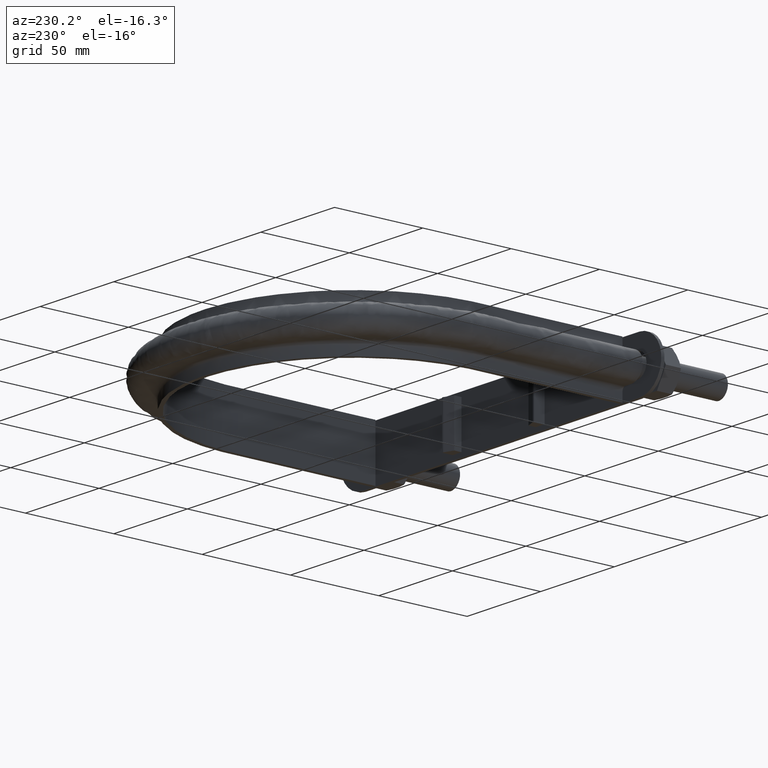
[diagram: clean part render]
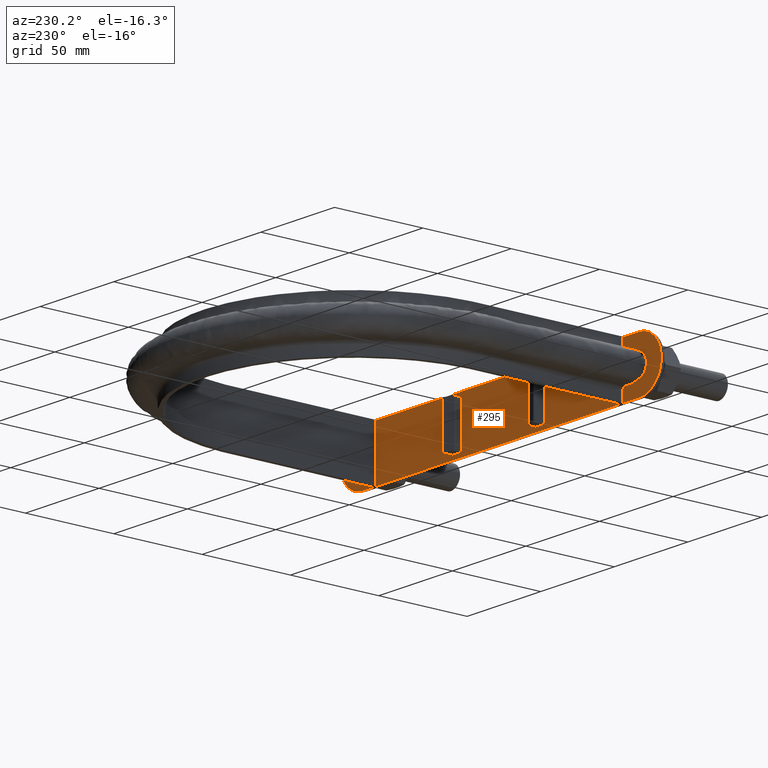
[diagram: same view with one face highlighted and labeled with its STEP entity id]
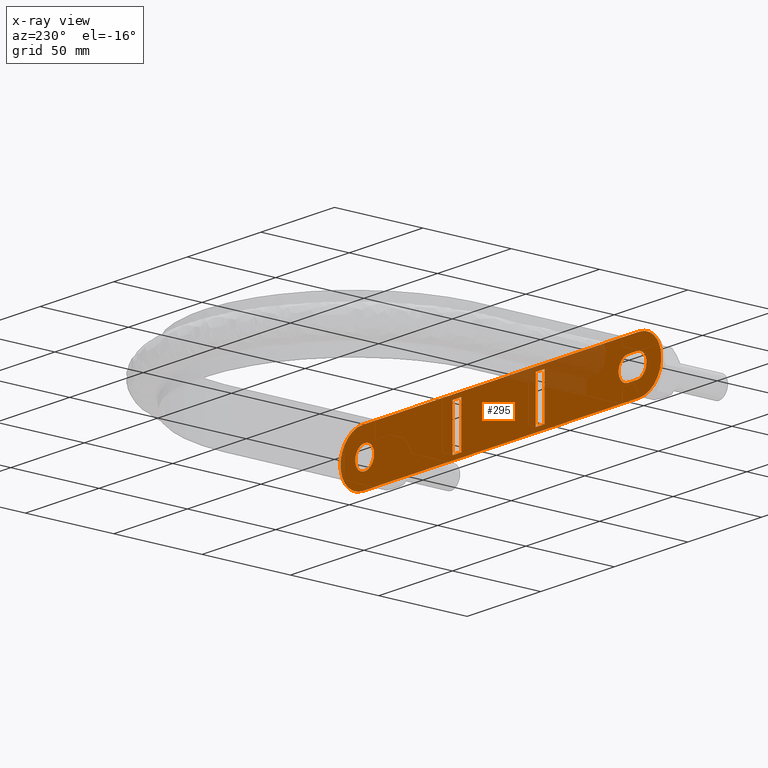
[diagram: x-ray of the same camera — body ghosted, the highlighted face saturated]
A machine part, auxiliary view. The second image highlights one B-rep face of the part: STEP entity #295.
The next image is the same camera in x-ray: the body ghosted, the highlighted face saturated — about 13% of this face is hidden behind the body in this view.
In plain terms, the highlighted planar face has unit normal (0, 1, 0).
Its self-contained STEP definition (entity closure, byte-faithful):
#295 = ADVANCED_FACE( '', ( #413, #414, #415, #416, #417 ), #418, .T. );
#413 = FACE_OUTER_BOUND( '', #1495, .T. );
#414 = FACE_BOUND( '', #1496, .T. );
#415 = FACE_BOUND( '', #1497, .T. );
#416 = FACE_BOUND( '', #1498, .T. );
#417 = FACE_BOUND( '', #1499, .T. );
#418 = PLANE( '', #1500 );
#1495 = EDGE_LOOP( '', ( #1831, #1832, #1833, #1834 ) );
#1496 = EDGE_LOOP( '', ( #1835, #1836, #1837, #1838 ) );
#1497 = EDGE_LOOP( '', ( #1839 ) );
#1498 = EDGE_LOOP( '', ( #1840, #1841, #1842, #1843 ) );
#1499 = EDGE_LOOP( '', ( #1844, #1845, #1846, #1847 ) );
#1500 = AXIS2_PLACEMENT_3D( '', #1848, #1849, #1850 );
#1831 = ORIENTED_EDGE( '', *, *, #2245, .T. );
#1832 = ORIENTED_EDGE( '', *, *, #2240, .T. );
#1833 = ORIENTED_EDGE( '', *, *, #2244, .T. );
#1834 = ORIENTED_EDGE( '', *, *, #2246, .T. );
#1835 = ORIENTED_EDGE( '', *, *, #2247, .T. );
#1836 = ORIENTED_EDGE( '', *, *, #2221, .T. );
#1837 = ORIENTED_EDGE( '', *, *, #2248, .F. );
#1838 = ORIENTED_EDGE( '', *, *, #2249, .F. );
#1839 = ORIENTED_EDGE( '', *, *, #2250, .F. );
#1840 = ORIENTED_EDGE( '', *, *, #2251, .F. );
#1841 = ORIENTED_EDGE( '', *, *, #2252, .F. );
#1842 = ORIENTED_EDGE( '', *, *, #2253, .F. );
#1843 = ORIENTED_EDGE( '', *, *, #2254, .F. );
#1844 = ORIENTED_EDGE( '', *, *, #2255, .F. );
#1845 = ORIENTED_EDGE( '', *, *, #2256, .T. );
#1846 = ORIENTED_EDGE( '', *, *, #2257, .T. );
#1847 = ORIENTED_EDGE( '', *, *, #2258, .F. );
#1848 = CARTESIAN_POINT( '', ( -95.5500000000000, 48.8000000000003, 7.48946718462292E-010 ) );
#1849 = DIRECTION( '', ( 1.31612346909528E-032, 1.00000000000000, 5.38325119430398E-017 ) );
#1850 = DIRECTION( '', ( 1.00000000000000, 2.73691106313441E-048, -2.44484870126044E-016 ) );
#2221 = EDGE_CURVE( '', #2436, #2433, #2437, .F. );
#2240 = EDGE_CURVE( '', #2465, #2466, #2467, .T. );
#2244 = EDGE_CURVE( '', #2466, #2470, #2472, .T. );
#2245 = EDGE_CURVE( '', #2473, #2465, #2474, .T. );
#2246 = EDGE_CURVE( '', #2470, #2473, #2475, .T. );
#2247 = EDGE_CURVE( '', #2476, #2436, #2477, .F. );
#2248 = EDGE_CURVE( '', #2478, #2433, #2479, .T. );
#2249 = EDGE_CURVE( '', #2476, #2478, #2480, .F. );
#2250 = EDGE_CURVE( '', #2481, #2481, #2482, .T. );
#2251 = EDGE_CURVE( '', #2483, #2484, #2485, .T. );
#2252 = EDGE_CURVE( '', #2486, #2483, #2487, .F. );
#2253 = EDGE_CURVE( '', #2488, #2486, #2489, .T. );
#2254 = EDGE_CURVE( '', #2484, #2488, #2490, .F. );
#2255 = EDGE_CURVE( '', #2491, #2492, #2493, .F. );
#2256 = EDGE_CURVE( '', #2491, #2494, #2495, .T. );
#2257 = EDGE_CURVE( '', #2494, #2496, #2497, .F. );
#2258 = EDGE_CURVE( '', #2492, #2496, #2498, .F. );
#2433 = VERTEX_POINT( '', #2929 );
#2436 = VERTEX_POINT( '', #2933 );
#2437 = LINE( '', #2934, #2935 );
#2465 = VERTEX_POINT( '', #2981 );
#2466 = VERTEX_POINT( '', #2982 );
#2467 = LINE( '', #2983, #2984 );
#2470 = VERTEX_POINT( '', #2989 );
#2472 = CIRCLE( '', #2992, 15.0000000000000 );
#2473 = VERTEX_POINT( '', #2993 );
#2474 = CIRCLE( '', #2994, 15.0000000000000 );
#2475 = LINE( '', #2995, #2996 );
#2476 = VERTEX_POINT( '', #2997 );
#2477 = LINE( '', #2998, #2999 );
#2478 = VERTEX_POINT( '', #3000 );
#2479 = LINE( '', #3001, #3002 );
#2480 = LINE( '', #3003, #3004 );
#2481 = VERTEX_POINT( '', #3005 );
#2482 = CIRCLE( '', #3006, 6.40000000000000 );
#2483 = VERTEX_POINT( '', #3007 );
#2484 = VERTEX_POINT( '', #3008 );
#2485 = CIRCLE( '', #3009, 6.50000000000000 );
#2486 = VERTEX_POINT( '', #3010 );
#2487 = LINE( '', #3011, #3012 );
#2488 = VERTEX_POINT( '', #3013 );
#2489 = CIRCLE( '', #3014, 6.50000000000000 );
#2490 = LINE( '', #3015, #3016 );
#2491 = VERTEX_POINT( '', #3017 );
#2492 = VERTEX_POINT( '', #3018 );
#2493 = LINE( '', #3019, #3020 );
#2494 = VERTEX_POINT( '', #3021 );
#2495 = LINE( '', #3022, #3023 );
#2496 = VERTEX_POINT( '', #3024 );
#2497 = LINE( '', #3025, #3026 );
#2498 = LINE( '', #3027, #3028 );
#2929 = CARTESIAN_POINT( '', ( -25.2499999999020, 48.8000000000003, 12.5000000001979 ) );
#2933 = CARTESIAN_POINT( '', ( -25.2500000000980, 48.8000000000003, -12.4999999998021 ) );
#2934 = CARTESIAN_POINT( '', ( -25.2500000000000, 48.8000000000003, 1.97905168706057E-010 ) );
#2935 = VECTOR( '', #3379, 1000.00000000000 );
#2981 = CARTESIAN_POINT( '', ( -95.5499999999412, 48.8000000000003, 15.0000000007489 ) );
#2982 = CARTESIAN_POINT( '', ( 92.4500000000588, 48.8000000000003, 15.0000000000121 ) );
#2983 = CARTESIAN_POINT( '', ( -95.5500000000000, 48.8000000000003, 15.0000000007489 ) );
#2984 = VECTOR( '', #3398, 1000.00000000000 );
#2989 = CARTESIAN_POINT( '', ( 92.4499999998824, 48.8000000000003, -15.0000000007247 ) );
#2992 = AXIS2_PLACEMENT_3D( '', #3402, #3403, #3404 );
#2993 = CARTESIAN_POINT( '', ( -95.5500000001176, 48.8000000000003, -14.9999999992510 ) );
#2994 = AXIS2_PLACEMENT_3D( '', #3405, #3406, #3407 );
#2995 = CARTESIAN_POINT( '', ( -95.5500000001176, 48.8000000000003, -14.9999999992511 ) );
#2996 = VECTOR( '', #3408, 1000.00000000000 );
#2997 = CARTESIAN_POINT( '', ( -31.2500000000980, 48.8000000000003, -12.4999999997551 ) );
#2998 = CARTESIAN_POINT( '', ( -95.5500000000980, 48.8000000000003, -12.4999999992511 ) );
#2999 = VECTOR( '', #3409, 1000.00000000000 );
#3000 = CARTESIAN_POINT( '', ( -31.2499999999020, 48.8000000000003, 12.5000000002449 ) );
#3001 = CARTESIAN_POINT( '', ( -31.2499999999020, 48.8000000000003, 12.5000000002449 ) );
#3002 = VECTOR( '', #3410, 1000.00000000000 );
#3003 = CARTESIAN_POINT( '', ( -31.2500000000980, 48.8000000000003, -12.4999999997551 ) );
#3004 = VECTOR( '', #3411, 1000.00000000000 );
#3005 = CARTESIAN_POINT( '', ( 91.0000000000000, 48.8000000000003, 6.39999999928670 ) );
#3006 = AXIS2_PLACEMENT_3D( '', #3412, #3413, #3414 );
#3007 = CARTESIAN_POINT( '', ( -94.0000000000510, 48.8000000000003, -6.49999999926320 ) );
#3008 = CARTESIAN_POINT( '', ( -93.9999999999745, 48.8000000000003, 6.50000000071328 ) );
#3009 = AXIS2_PLACEMENT_3D( '', #3415, #3416, #3417 );
#3010 = CARTESIAN_POINT( '', ( -88.0000000000510, 48.8000000000003, -6.49999999931023 ) );
#3011 = CARTESIAN_POINT( '', ( -94.0000000000510, 48.8000000000003, -6.49999999926320 ) );
#3012 = VECTOR( '', #3418, 1000.00000000000 );
#3013 = CARTESIAN_POINT( '', ( -87.9999999999746, 48.8000000000003, 6.50000000068976 ) );
#3014 = AXIS2_PLACEMENT_3D( '', #3419, #3420, #3421 );
#3015 = CARTESIAN_POINT( '', ( -87.9999999999491, 48.8000000000003, 6.50000000068976 ) );
#3016 = VECTOR( '', #3422, 1000.00000000000 );
#3017 = CARTESIAN_POINT( '', ( 25.2499999999020, 48.8000000000003, -12.5000000002450 ) );
#3018 = CARTESIAN_POINT( '', ( 25.2500000000980, 48.8000000000003, 12.4999999997550 ) );
#3019 = CARTESIAN_POINT( '', ( 25.2499999999020, 48.8000000000003, -12.5000000001979 ) );
#3020 = VECTOR( '', #3423, 1000.00000000000 );
#3021 = CARTESIAN_POINT( '', ( 31.2499999999020, 48.8000000000003, -12.5000000002450 ) );
#3022 = CARTESIAN_POINT( '', ( -95.5500000000000, 48.8000000000003, -12.5000000002450 ) );
#3023 = VECTOR( '', #3424, 1000.00000000000 );
#3024 = CARTESIAN_POINT( '', ( 31.2500000000979, 48.8000000000003, 12.4999999997550 ) );
#3025 = CARTESIAN_POINT( '', ( 31.2500000000000, 48.8000000000003, -2.44966062605853E-010 ) );
#3026 = VECTOR( '', #3425, 1000.00000000000 );
#3027 = CARTESIAN_POINT( '', ( 31.2500000000979, 48.8000000000003, 12.4999999997550 ) );
#3028 = VECTOR( '', #3426, 1000.00000000000 );
#3379 = DIRECTION( '', ( -7.83842887277717E-012, 5.38325119430398E-017, -1.00000000000000 ) );
#3398 = DIRECTION( '', ( 1.00000000000000, -1.31612346909755E-032, 4.21958976310680E-028 ) );
#3402 = CARTESIAN_POINT( '', ( 92.4500000000000, 48.8000000000003, -7.24650581276957E-010 ) );
#3403 = DIRECTION( '', ( 1.31612346909528E-032, 1.00000000000000, 5.38325119430398E-017 ) );
#3404 = DIRECTION( '', ( 0.000000000000000, -5.38325119430398E-017, 1.00000000000000 ) );
#3405 = CARTESIAN_POINT( '', ( -95.5500000000000, 48.8000000000003, 7.48946718462292E-010 ) );
#3406 = DIRECTION( '', ( 1.31612346909528E-032, 1.00000000000000, 5.38325119430398E-017 ) );
#3407 = DIRECTION( '', ( 0.000000000000000, -5.38325119430398E-017, 1.00000000000000 ) );
#3408 = DIRECTION( '', ( -1.00000000000000, -4.21946296651834E-028, 7.83837578177664E-012 ) );
#3409 = DIRECTION( '', ( -1.00000000000000, -4.21946296651834E-028, 7.83837578177664E-012 ) );
#3410 = DIRECTION( '', ( 1.00000000000000, 4.21946296651834E-028, -7.83837578177664E-012 ) );
#3411 = DIRECTION( '', ( -7.83842887277717E-012, 5.38325119430398E-017, -1.00000000000000 ) );
#3412 = CARTESIAN_POINT( '', ( 91.0000000000000, 48.8000000000003, -7.13300548904664E-010 ) );
#3413 = DIRECTION( '', ( 1.31612346909528E-032, 1.00000000000000, 5.38325119430398E-017 ) );
#3414 = DIRECTION( '', ( 0.000000000000000, -5.38325119430398E-017, 1.00000000000000 ) );
#3415 = CARTESIAN_POINT( '', ( -94.0000000000000, 48.8000000000003, 7.36795501277063E-010 ) );
#3416 = DIRECTION( '', ( 1.31612346909528E-032, 1.00000000000000, 5.38325119430398E-017 ) );
#3417 = DIRECTION( '', ( 0.000000000000000, -5.38325119430398E-017, 1.00000000000000 ) );
#3418 = DIRECTION( '', ( 1.00000000000000, 4.21946296651834E-028, -7.83837578177664E-012 ) );
#3419 = CARTESIAN_POINT( '', ( -88.0000000000001, 48.8000000000003, 6.89765246586403E-010 ) );
#3420 = DIRECTION( '', ( 1.31612346909528E-032, 1.00000000000000, 5.38325119430398E-017 ) );
#3421 = DIRECTION( '', ( 0.000000000000000, -5.38325119430398E-017, 1.00000000000000 ) );
#3422 = DIRECTION( '', ( -1.00000000000000, 1.31612346909755E-032, -4.21958976310680E-028 ) );
#3423 = DIRECTION( '', ( -7.83842887277717E-012, 5.38325119430398E-017, -1.00000000000000 ) );
#3424 = DIRECTION( '', ( 1.00000000000000, -1.31612346908703E-032, -1.53266935550212E-027 ) );
#3425 = DIRECTION( '', ( -7.83842887277717E-012, 5.38325119430398E-017, -1.00000000000000 ) );
#3426 = DIRECTION( '', ( -1.00000000000000, 1.31612346908703E-032, 1.53266935550212E-027 ) );